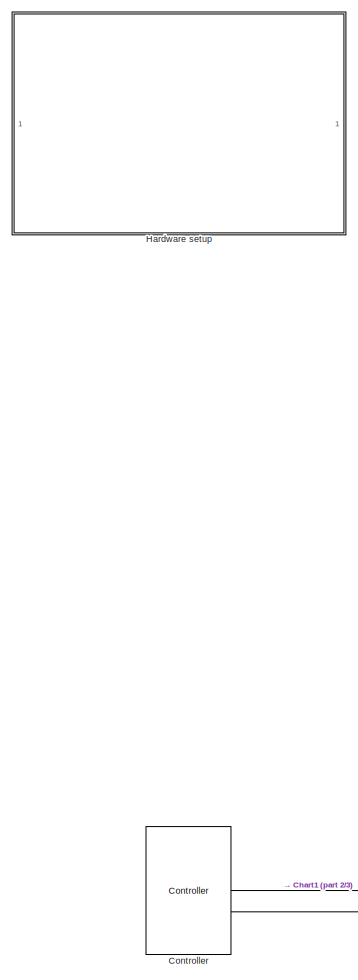
[diagram: root canvas - part 1/3, left side, full height]
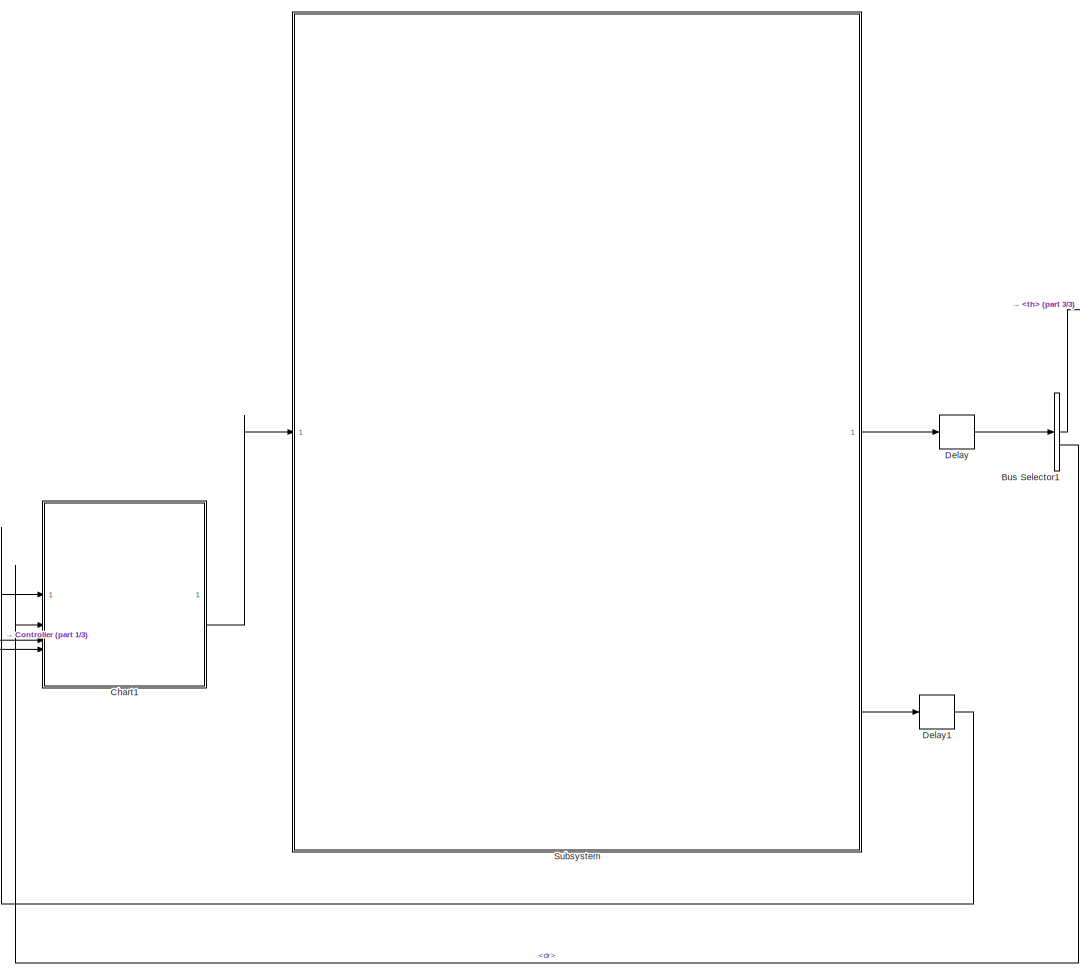
[diagram: root canvas - part 2/3, center side, full height]
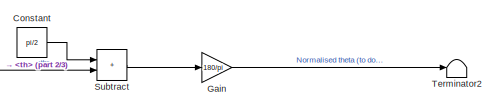
[diagram: root canvas - part 3/3, middle right region]
MODEL slx_cf6c2ef8ab5f
KIND model
CONFIG AbsTol = auto
CONFIG EnableMultiTasking = off
CONFIG FixedStep = auto
CONFIG MaxStep = auto
CONFIG MinStep = auto
CONFIG RelTol = 1e-3
CONFIG SampleTimeConstraint = Unconstrained
CONFIG SolverName = FixedStepAuto
CONFIG StartTime = 0.0
CONFIG StopTime = inf
BLOCK [BusSelector] Bus Selector1
  OutputSignals = th,dr
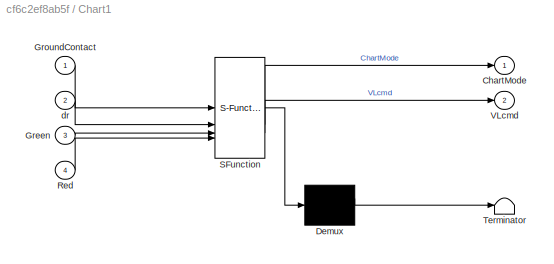
BLOCK [SubSystem] Chart1
  ErrorFcn = Stateflow.Translate.translate
  NameLocation = top
  PermitHierarchicalResolution = ExplicitOnly
  SFBlockType = Chart
  TreatAsAtomicUnit = on
BLOCK [Demux] Chart1/ Demux 
  Outputs = 1
BLOCK [S-Function] Chart1/ SFunction 
  EnableBusSupport = off
  FunctionName = sf_sfun
  PortCounts = [4 3]
  SFcnIsStateOwnerBlock = off
  SFunctionDeploymentMode = off
  Tag = Stateflow S-Function 2
BLOCK [Terminator] Chart1/ Terminator 
BLOCK [Outport] Chart1/ChartMode
BLOCK [Inport] Chart1/Green
  Port = 3
BLOCK [Inport] Chart1/GroundContact
BLOCK [Inport] Chart1/Red
  Port = 4
BLOCK [Outport] Chart1/VLcmd
  Port = 2
BLOCK [Inport] Chart1/dr
  Port = 2
BLOCK [Constant] Constant
  Value = pi/2
BLOCK [Reference] Controller  REF=aru_toolbox/Controller
  SourceBlock = aru_toolbox/Controller
  SourceProductName = ARU Toolbox
BLOCK [Delay] Delay
  DelayLength = 1
  InputPortMap = u0
BLOCK [Delay] Delay1
  DelayLength = 1
  InputPortMap = u0
BLOCK [Gain] Gain
  Gain = 180/pi
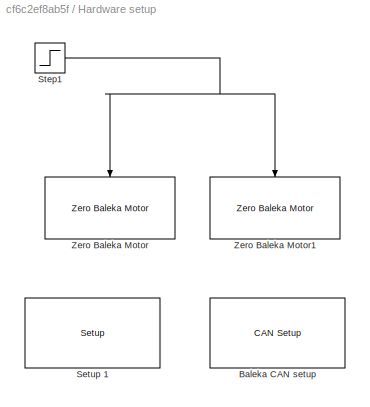
BLOCK [SubSystem] Hardware setup
BLOCK [Reference] Hardware setup/Baleka CAN setup  REF=speedgoatlib_IO691/Legacy/CAN Setup 
  SourceBlock = speedgoatlib_IO691/Legacy/CAN Setup
  SourceProductName = IO691
  SourceType = setup_IO691
BLOCK [Reference] Hardware setup/Setup 1  REF=speedgoatlib_IO291/Setup 
  SourceBlock = speedgoatlib_IO291/Setup
  SourceProductName = IO291
  SourceType = setup_IO291
BLOCK [Step] Hardware setup/Step1
  SampleTime = 0
  Time = 0.3
BLOCK [Reference] Hardware setup/Zero Baleka Motor  REF=aru_toolbox/Baleka 2.5/Zero Baleka Motor
  SourceBlock = aru_toolbox/Baleka 2.5/Zero Baleka Motor
  SourceProductName = ARU Toolbox
  SourceType = Zero AK10-9
BLOCK [Reference] Hardware setup/Zero Baleka Motor1  REF=aru_toolbox/Baleka 2.5/Zero Baleka Motor
  SourceBlock = aru_toolbox/Baleka 2.5/Zero Baleka Motor
  SourceProductName = ARU Toolbox
  SourceType = Zero AK10-9
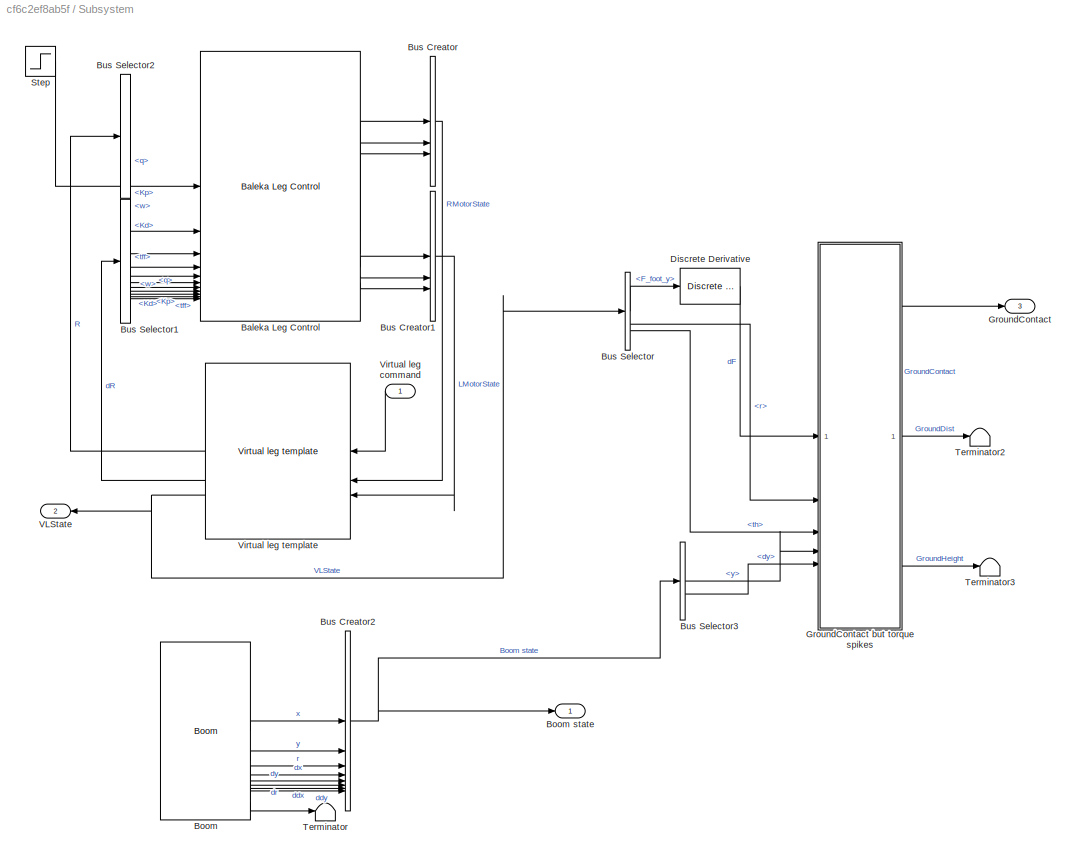
BLOCK [SubSystem] Subsystem
BLOCK [Reference] Subsystem/Baleka Leg Control  REF=aru_toolbox/Baleka 2.5/Baleka Leg Control
  SourceBlock = aru_toolbox/Baleka 2.5/Baleka Leg Control
  SourceProductName = ARU Toolbox
  SourceType = Baleka Leg motor commands
BLOCK [Reference] Subsystem/Boom  REF=aru_toolbox/Boom
  SourceBlock = aru_toolbox/Boom
  SourceProductName = ARU Toolbox
  SourceType = Boom Logger
BLOCK [Outport] Subsystem/Boom state
BLOCK [BusCreator] Subsystem/Bus Creator
  DisplayOption = bar
  InheritFromInputs = off
  Inputs = 3
  OutDataTypeStr = Bus: MotorState
BLOCK [BusCreator] Subsystem/Bus Creator1
  DisplayOption = bar
  InheritFromInputs = off
  Inputs = 3
  OutDataTypeStr = Bus: MotorState
BLOCK [BusCreator] Subsystem/Bus Creator2
  DisplayOption = bar
  InheritFromInputs = on
  Inputs = 8
  NonVirtualBus = on
  OutDataTypeStr = Bus: BodyState
BLOCK [BusSelector] Subsystem/Bus Selector
  OutputSignals = F_foot_y,r,th
BLOCK [BusSelector] Subsystem/Bus Selector1
  OutputSignals = q,w,Kp,Kd,tff
BLOCK [BusSelector] Subsystem/Bus Selector2
  OutputSignals = q,w,Kp,Kd,tff
BLOCK [BusSelector] Subsystem/Bus Selector3
  OutputSignals = y,dy
BLOCK [Reference] Subsystem/Discrete Derivative  REF=simulink/Discrete/Discrete Derivative
  SourceBlock = simulink/Discrete/Discrete Derivative
  SourceType = Discrete Derivative
BLOCK [Outport] Subsystem/GroundContact
  Port = 3
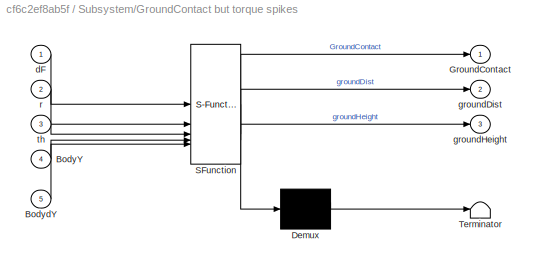
BLOCK [SubSystem] Subsystem/GroundContact but torque spikes
  ErrorFcn = Stateflow.Translate.translate
  PermitHierarchicalResolution = ExplicitOnly
  SFBlockType = MATLAB Function
  TreatAsAtomicUnit = on
BLOCK [Demux] Subsystem/GroundContact but torque spikes/ Demux 
  Outputs = 1
BLOCK [S-Function] Subsystem/GroundContact but torque spikes/ SFunction 
  EnableBusSupport = off
  FunctionName = sf_sfun
  PortCounts = [5 4]
  SFcnIsStateOwnerBlock = off
  SFunctionDeploymentMode = off
  Tag = Stateflow S-Function 3
BLOCK [Terminator] Subsystem/GroundContact but torque spikes/ Terminator 
BLOCK [Inport] Subsystem/GroundContact but torque spikes/BodyY
  Port = 4
BLOCK [Inport] Subsystem/GroundContact but torque spikes/BodydY
  Port = 5
BLOCK [Outport] Subsystem/GroundContact but torque spikes/GroundContact
BLOCK [Inport] Subsystem/GroundContact but torque spikes/dF
BLOCK [Outport] Subsystem/GroundContact but torque spikes/groundDist
  Port = 2
BLOCK [Outport] Subsystem/GroundContact but torque spikes/groundHeight
  Port = 3
BLOCK [Inport] Subsystem/GroundContact but torque spikes/r
  Port = 2
BLOCK [Inport] Subsystem/GroundContact but torque spikes/th
  Port = 3
BLOCK [Step] Subsystem/Step
  SampleTime = 0
  Time = 3
BLOCK [Terminator] Subsystem/Terminator
BLOCK [Terminator] Subsystem/Terminator2
BLOCK [Terminator] Subsystem/Terminator3
BLOCK [Outport] Subsystem/VLState
  Port = 2
BLOCK [Inport] Subsystem/Virtual leg command
BLOCK [Reference] Subsystem/Virtual leg template  REF=aru_toolbox/Baleka 2.5/Virtual leg template
  SourceBlock = aru_toolbox/Baleka 2.5/Virtual leg template
  SourceProductName = ARU Toolbox
BLOCK [Sum] Subtract
  IconShape = rectangular
BLOCK [Terminator] Terminator2
LINE Bus Selector1:1 -> Subtract:2
LINE Bus Selector1:2 -> Chart1:2
LINE Chart1:2 -> Subsystem:1
LINE Constant:1 -> Subtract:1
LINE Controller:1 -> Chart1:3
LINE Controller:2 -> Chart1:4
LINE Delay1:1 -> Chart1:1
LINE Delay:1 -> Bus Selector1:1
LINE Gain:1 -> Terminator2:1
NET Hardware setup/Step1:1 -> Hardware setup/Zero Baleka Motor1:trigger, Hardware setup/Zero Baleka Motor:trigger
LINE Subsystem/Baleka Leg Control:1 -> Subsystem/Bus Creator:1
LINE Subsystem/Baleka Leg Control:2 -> Subsystem/Bus Creator:2
LINE Subsystem/Baleka Leg Control:3 -> Subsystem/Bus Creator:3
LINE Subsystem/Baleka Leg Control:4 -> Subsystem/Bus Creator1:1
LINE Subsystem/Baleka Leg Control:5 -> Subsystem/Bus Creator1:2
LINE Subsystem/Baleka Leg Control:6 -> Subsystem/Bus Creator1:3
LINE Subsystem/Boom:1 -> Subsystem/Bus Creator2:1
LINE Subsystem/Boom:2 -> Subsystem/Bus Creator2:2
LINE Subsystem/Boom:3 -> Subsystem/Bus Creator2:3
LINE Subsystem/Boom:4 -> Subsystem/Bus Creator2:4
LINE Subsystem/Boom:5 -> Subsystem/Bus Creator2:5
LINE Subsystem/Boom:6 -> Subsystem/Bus Creator2:6
LINE Subsystem/Boom:7 -> Subsystem/Bus Creator2:7
LINE Subsystem/Boom:8 -> Subsystem/Bus Creator2:8
LINE Subsystem/Boom:9 -> Subsystem/Terminator:1
LINE Subsystem/Bus Creator1:1 -> Subsystem/Virtual leg template:3
NET Subsystem/Bus Creator2:1 -> Subsystem/Boom state:1, Subsystem/Bus Selector3:1
LINE Subsystem/Bus Creator:1 -> Subsystem/Virtual leg template:2
LINE Subsystem/Bus Selector1:1 -> Subsystem/Baleka Leg Control:7
LINE Subsystem/Bus Selector1:2 -> Subsystem/Baleka Leg Control:8
LINE Subsystem/Bus Selector1:3 -> Subsystem/Baleka Leg Control:9
LINE Subsystem/Bus Selector1:4 -> Subsystem/Baleka Leg Control:10
LINE Subsystem/Bus Selector1:5 -> Subsystem/Baleka Leg Control:11
LINE Subsystem/Bus Selector2:1 -> Subsystem/Baleka Leg Control:2
LINE Subsystem/Bus Selector2:2 -> Subsystem/Baleka Leg Control:3
LINE Subsystem/Bus Selector2:3 -> Subsystem/Baleka Leg Control:4
LINE Subsystem/Bus Selector2:4 -> Subsystem/Baleka Leg Control:5
LINE Subsystem/Bus Selector2:5 -> Subsystem/Baleka Leg Control:6
LINE Subsystem/Bus Selector3:1 -> Subsystem/GroundContact but torque spikes:4
LINE Subsystem/Bus Selector3:2 -> Subsystem/GroundContact but torque spikes:5
LINE Subsystem/Bus Selector:1 -> Subsystem/Discrete Derivative:1
LINE Subsystem/Bus Selector:2 -> Subsystem/GroundContact but torque spikes:2
LINE Subsystem/Bus Selector:3 -> Subsystem/GroundContact but torque spikes:3
LINE Subsystem/Discrete Derivative:1 -> Subsystem/GroundContact but torque spikes:1
LINE Subsystem/GroundContact but torque spikes:1 -> Subsystem/GroundContact:1
LINE Subsystem/GroundContact but torque spikes:2 -> Subsystem/Terminator2:1
LINE Subsystem/GroundContact but torque spikes:3 -> Subsystem/Terminator3:1
LINE Subsystem/Step:1 -> Subsystem/Baleka Leg Control:1
LINE Subsystem/Virtual leg command:1 -> Subsystem/Virtual leg template:1
LINE Subsystem/Virtual leg template:1 -> Subsystem/Bus Selector2:1
LINE Subsystem/Virtual leg template:2 -> Subsystem/Bus Selector1:1
NET Subsystem/Virtual leg template:3 -> Subsystem/Bus Selector:1, Subsystem/VLState:1
LINE Subsystem:2 -> Delay:1
LINE Subsystem:3 -> Delay1:1
LINE Subtract:1 -> Gain:1
note: NET lines group one-source signal fan-out (src -> all destinations, sorted); 1:1 wires keep LINE
CHART Chart1 states=6 transitions=12
  STATE_LABEL 'Stop\n% Static values\nVLcmd.Tff = 0;\nVLcmd.dth_des =0;\nVLcmd.th_des = -pi/2;\nVLcmd.KPth = 250;\nVLcmd.KDth = 10;\nVLcmd.r_des = 0.45;\nVLcmd.dr_des =0;\nVLcmd.KPr = 1500;\nVLcmd.KDr =50;\nVLcmd.Fff =0;\n'
  STATE_LABEL 'StandUp\n% Static values\nVLcmd.Tff = 0;\nVLcmd.dth_des =0;\nVLcmd.th_des = -pi/2;\nVLcmd.KPth = 50;\nVLcmd.KDth = 5;\n% Gentle stand-up\nVLcmd.r_des = 0.40;\nVLcmd.dr_des =0;\nVLcmd.KPr = 600;\nVLcmd.KDr =50;\nVLcmd.Fff =0;\n'
  STATE_LABEL 'Flight\n% Brace for impact\nVLcmd.r_des = 0.45;\nVLcmd.dr_des =0;\nVLcmd.KPr = 1500;\nVLcmd.KDr =150;\nVLcmd.Fff =0;\nVLcmd.KPth = 350;\nVLcmd.KDth = 10;\n'
  STATE_LABEL 'Contact\n% let spring compress\nVLcmd.r_des = 0.35;\nVLcmd.KPr = 1500;\nVLcmd.KDr =150;\n'
  STATE_LABEL 'Compression\n% let spring compress\n'
  STATE_LABEL 'Thrust\n% Apply upwards thrust force\nVLcmd.r_des = 0.55\nVLcmd.KPr = 1750;\nVLcmd.KDr =0;\nVLcmd.Fff = 0; %Max out upwards thrust\n'
CHART Subsystem/GroundContact but torque spikes states=1 transitions=1
  STATE_LABEL 'eML_blk_kernel()'
  STATE_LABEL 'SCRIPT:\nfunction [GroundContact, groundDist, groundHeight]  = ImpactTorque(dF,r, th, BodyY, BodydY)\n        % need to see how IRL torque spikes work, but we can do a veeery\n        % rough guestimate here:\n        persistent GroundContactpers;\n        persistent GroundHeight;\n        if isempty(GroundContactpers)\n            GroundContactpers = true;\n            GroundHeight = 0;\n        end\n\n    ...<+564ch>'
CHART  states=0 transitions=0
CHART  states=0 transitions=0
